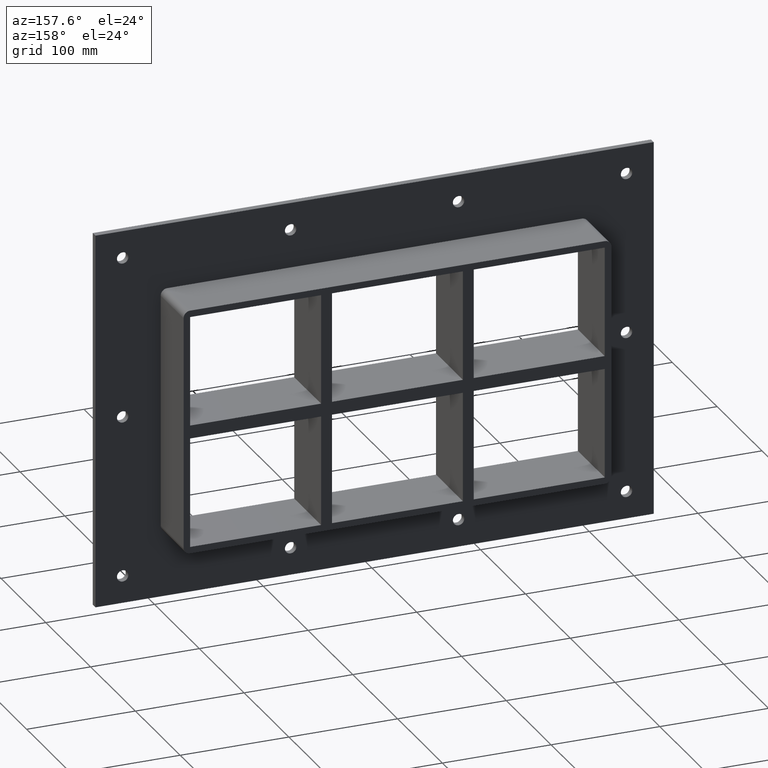
[diagram: clean part render]
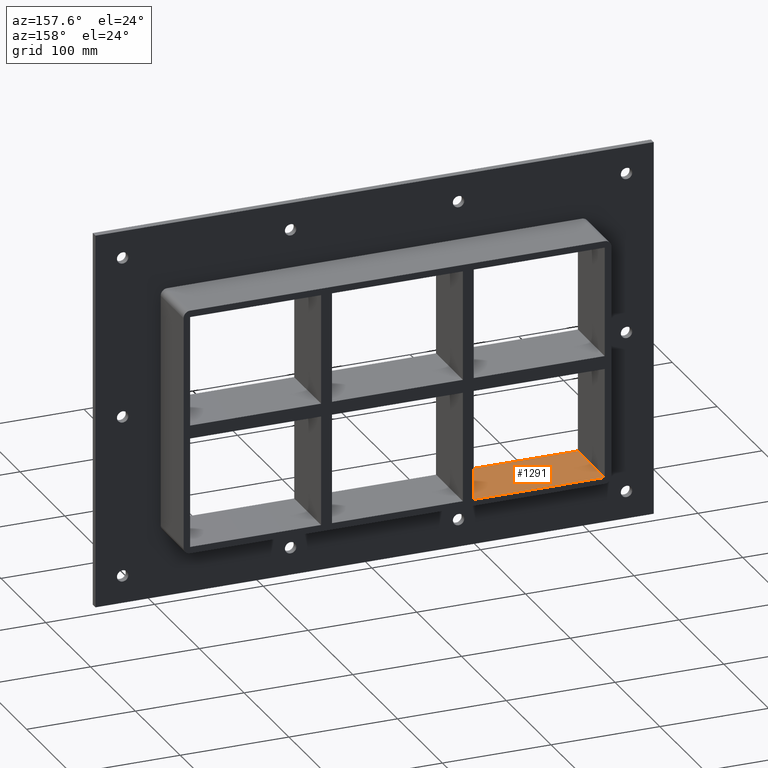
[diagram: same view with one face highlighted and labeled with its STEP entity id]
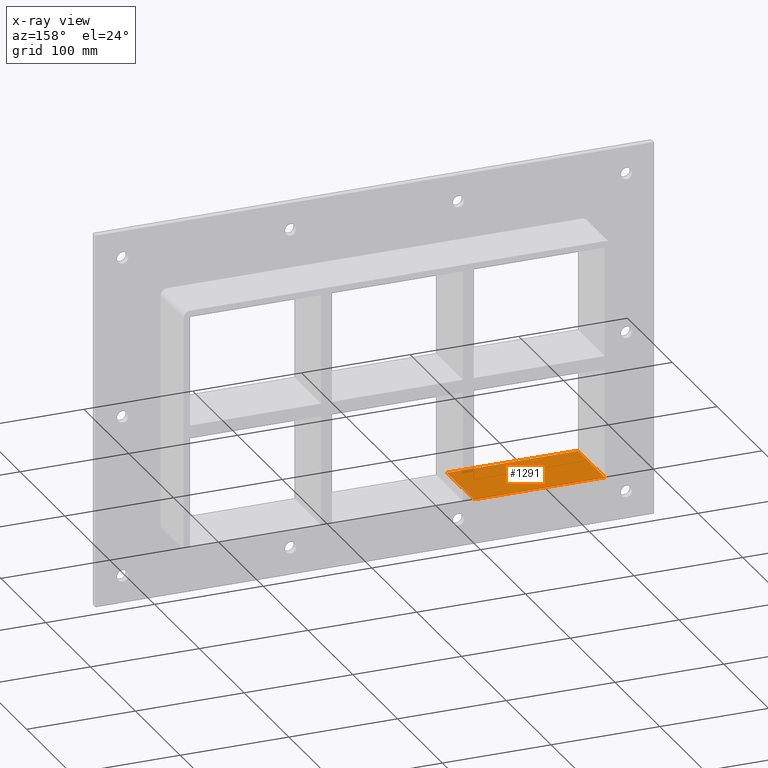
[diagram: x-ray of the same camera — body ghosted, the highlighted face saturated]
A machine part, auxiliary view. The second image highlights one B-rep face of the part: STEP entity #1291.
The next image is the same camera in x-ray: the body ghosted, the highlighted face saturated — about 1% of this face is hidden behind the body in this view.
In plain terms, the highlighted planar face has unit normal (0, 0, -1).
Its self-contained STEP definition (entity closure, byte-faithful):
#741=CARTESIAN_POINT('',(-70.250000000002075,-3.0,-107.0));
#742=VERTEX_POINT('',#741);
#749=CARTESIAN_POINT('',(-190.75000000000003,-3.0,-107.0));
#750=VERTEX_POINT('',#749);
#751=CARTESIAN_POINT('',(-70.250000000002089,-3.0,-107.00000000000003));
#752=DIRECTION('',(-1.0,0.0,0.0));
#753=VECTOR('',#752,120.49999999999797);
#754=LINE('',#751,#753);
#755=EDGE_CURVE('',#742,#750,#754,.T.);
#1173=CARTESIAN_POINT('',(-190.75000000000003,57.0,-107.0));
#1174=VERTEX_POINT('',#1173);
#1181=CARTESIAN_POINT('',(-70.250000000002075,57.0,-107.0));
#1182=VERTEX_POINT('',#1181);
#1183=CARTESIAN_POINT('',(-190.75000000000006,57.0,-107.00000000000003));
#1184=DIRECTION('',(1.0,0.0,0.0));
#1185=VECTOR('',#1184,120.49999999999797);
#1186=LINE('',#1183,#1185);
#1187=EDGE_CURVE('',#1174,#1182,#1186,.T.);
#1253=CARTESIAN_POINT('',(-70.250000000002075,-3.0,-107.00000000000003));
#1254=DIRECTION('',(0.0,1.0,0.0));
#1255=VECTOR('',#1254,60.000000000000007);
#1256=LINE('',#1253,#1255);
#1257=EDGE_CURVE('',#742,#1182,#1256,.T.);
#1275=CARTESIAN_POINT('',(190.75000000000003,0.0,-107.00000000000003));
#1276=DIRECTION('',(0.0,0.0,-1.0));
#1277=DIRECTION('',(-1.0,0.0,0.0));
#1278=AXIS2_PLACEMENT_3D('',#1275,#1276,#1277);
#1279=PLANE('',#1278);
#1280=ORIENTED_EDGE('',*,*,#1257,.T.);
#1281=ORIENTED_EDGE('',*,*,#1187,.F.);
#1282=CARTESIAN_POINT('',(-190.75000000000003,-3.0,-107.0));
#1283=DIRECTION('',(0.0,1.0,0.0));
#1284=VECTOR('',#1283,60.0);
#1285=LINE('',#1282,#1284);
#1286=EDGE_CURVE('',#750,#1174,#1285,.T.);
#1287=ORIENTED_EDGE('',*,*,#1286,.F.);
#1288=ORIENTED_EDGE('',*,*,#755,.F.);
#1289=EDGE_LOOP('',(#1280,#1281,#1287,#1288));
#1290=FACE_OUTER_BOUND('',#1289,.T.);
#1291=ADVANCED_FACE('',(#1290),#1279,.F.);